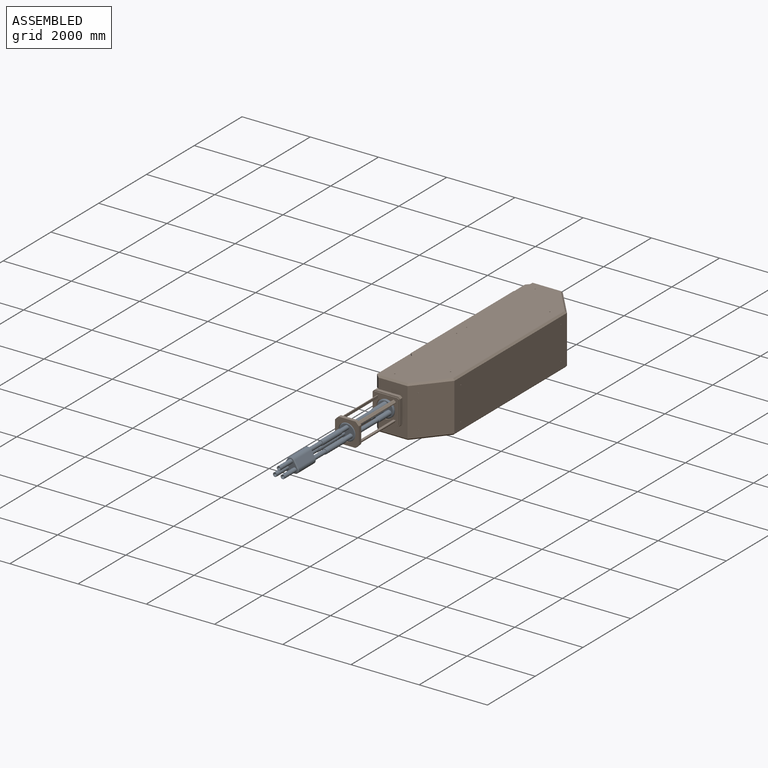
[diagram: assembled view]
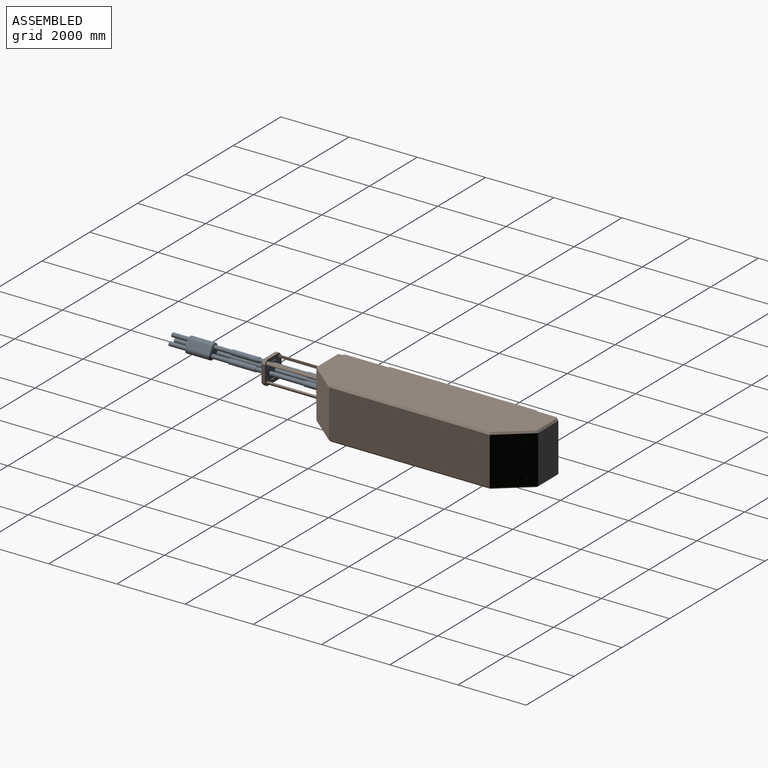
[diagram: assembled view, second angle]
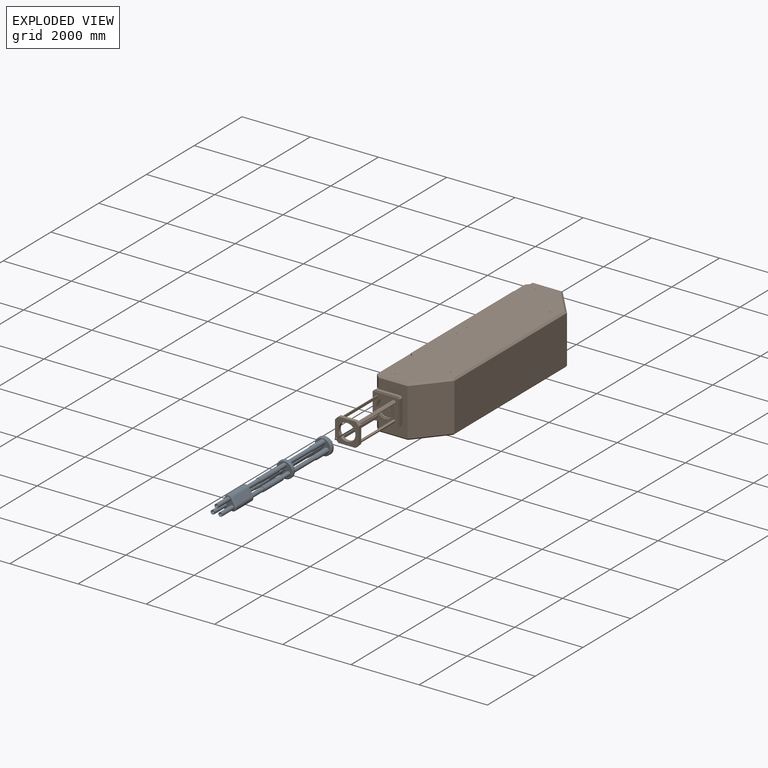
[diagram: exploded view]
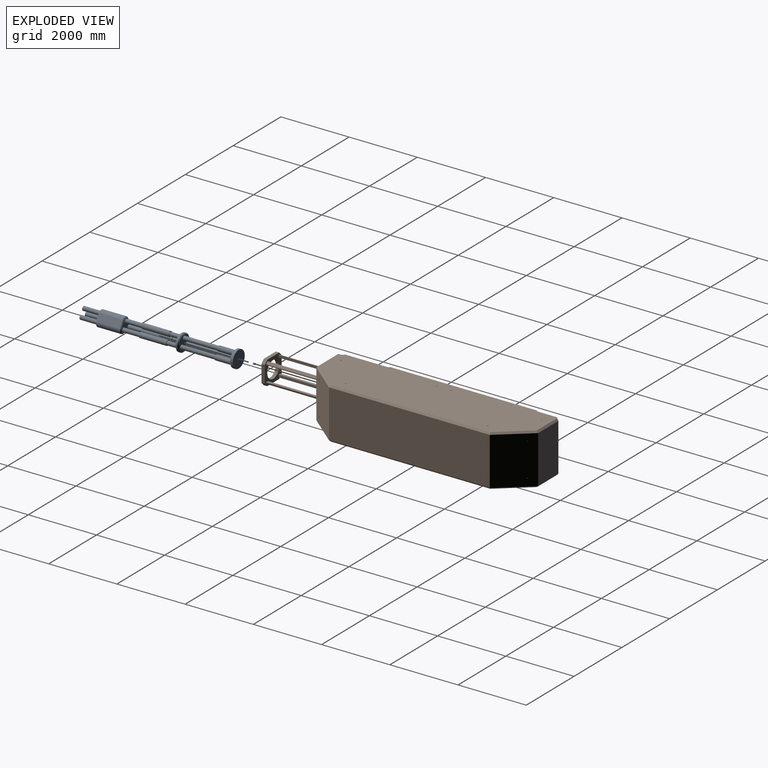
[diagram: exploded view, second angle]
ASSEMBLY  parts=4 mates=3
PART A: 70 faces, bbox 500x4550x500 mm
  f0: cylinder r=25mm len=50mm, axis (0,1,0), area 3927mm2, adj f2,f3
  f1: cylinder r=250mm len=500mm, axis (0,1,0), area 117809.7mm2, adj f2,f5
  f2: plane 500x500mm, normal (0,1,0), area 194386mm2, adj f0,f1
  f3: plane 50x50mm, normal (0,1,0), area 1963.5mm2, adj f0
  f4: plane 450x450mm, normal (0,-1,0), area 106028.8mm2, adj f5,f6,f35,f54
  f5: cone r=225mm half-angle=45deg, axis (0,1,0), area 52759.2mm2, adj f1,f4
  f6: cylinder r=75mm len=480mm, axis (0,1,0), area 226194.7mm2, adj f4,f8
  f7: cylinder r=60mm len=1005mm, axis (0,1,0), area 378876.1mm2, adj f8,f11
  f8: cone r=55mm half-angle=45deg, axis (0,1,0), area 8996.8mm2, adj f6,f7
  f9: cylinder r=250mm len=500mm, axis (0,1,0), area 78539.8mm2, adj f17,f18
  f10: plane 450x450mm, normal (0,-1,0), area 125113.9mm2, adj f12,f18,f38,f57
  f11: plane 450x450mm, normal (0,1,0), area 125113.9mm2, adj f7,f17,f36,f55
  f12: cylinder r=60mm len=300mm, axis (0,1,0), area 113097.3mm2, adj f10,f15
  f13: cylinder r=75mm len=800mm, axis (0,1,0), area 376991.1mm2, adj f14,f15
  f14: plane 150x150mm, normal (0,-1,0), area 6361.7mm2, adj f13,f16
  f15: plane 150x150mm, normal (0,1,0), area 6361.7mm2, adj f12,f13
  f16: cylinder r=60mm len=500mm, axis (0,1,0), area 188495.6mm2, adj f14,f22
  f17: cone r=250mm half-angle=45deg, axis (0,-1,0), area 52759.2mm2, adj f9,f11
  f18: cone r=225mm half-angle=45deg, axis (0,1,0), area 52759.2mm2, adj f9,f10
  f19: plane 700x180mm, normal (-0.87,0,0.5), area 145492.3mm2, adj f23,f29,f34,f62
  f20: plane 700x180mm, normal (0.87,0,0.5), area 145492.3mm2, adj f23,f31,f32,f44
  f21: plane 397.85x370mm, normal (0,-1,0), area 72366mm2, adj f24,f32,f33,f34,f45,f52,f53,f63
  f22: plane 397.85x370mm, normal (0,1,0), area 72366mm2, adj f16,f29,f30,f31,f42,f50,f51,f61
  f23: cylinder r=120mm len=700mm, axis (0,1,0), area 175929.2mm2, adj f19,f20,f30,f33
  f24: cylinder r=60mm len=500mm, axis (0,1,0), area 188495.6mm2, adj f21,f25
  f25: plane 120x120mm, normal (0,-1,0), area 3455.8mm2, adj f24,f28
  f26: cylinder r=25mm len=975mm, axis (0,-1,0), area 153152.6mm2, adj f27,f28
  f27: plane 50x50mm, normal (0,-1,0), area 1963.5mm2, adj f26
  f28: cone r=25mm half-angle=45deg, axis (0,-1,0), area 8330.4mm2, adj f25,f26
  f29: plane 192.5x125.57mm, normal (-0.61,0.71,0.35), area 7348.5mm2, adj f19,f22,f30,f68
  f30: cone r=95mm half-angle=45deg, axis (0,-1,0), area 7960.2mm2, adj f22,f23,f29,f31
  f31: plane 192.5x125.57mm, normal (0.61,0.71,0.35), area 7348.5mm2, adj f20,f22,f30,f50
  f32: plane 192.5x125.57mm, normal (0.61,-0.71,0.35), area 7348.5mm2, adj f20,f21,f33,f53
  f33: cone r=95mm half-angle=45deg, axis (0,1,0), area 7960.2mm2, adj f21,f23,f32,f34
  f34: plane 192.5x125.57mm, normal (-0.61,-0.71,0.35), area 7348.5mm2, adj f19,f21,f33,f69
  f35: cylinder r=75mm len=480mm, axis (0,1,0), area 226194.7mm2, adj f4,f37
  f36: cylinder r=60mm len=1005mm, axis (0,1,0), area 378876.1mm2, adj f11,f37
  f37: cone r=55mm half-angle=45deg, axis (0,1,0), area 8996.8mm2, adj f35,f36
  f38: cylinder r=60mm len=300mm, axis (0,1,0), area 113097.3mm2, adj f10,f41
  f39: cylinder r=75mm len=800mm, axis (0,1,0), area 376991.1mm2, adj f40,f41
  f40: plane 150x150mm, normal (0,-1,0), area 6361.7mm2, adj f39,f42
  f41: plane 150x150mm, normal (0,1,0), area 6361.7mm2, adj f38,f39
  f42: cylinder r=60mm len=500mm, axis (0,1,0), area 188495.6mm2, adj f22,f40
  f43: plane 700x207.85mm, normal (0,0,-1), area 145492.3mm2, adj f44,f51,f52,f62
  f44: cylinder r=120mm len=700mm, axis (0,1,0), area 175929.2mm2, adj f20,f43,f50,f53
  f45: cylinder r=60mm len=500mm, axis (0,1,0), area 188495.6mm2, adj f21,f46
  f46: plane 120x120mm, normal (0,-1,0), area 3455.8mm2, adj f45,f49
  f47: cylinder r=25mm len=975mm, axis (0,-1,0), area 153152.6mm2, adj f48,f49
  f48: plane 50x50mm, normal (0,-1,0), area 1963.5mm2, adj f47
  f49: cone r=25mm half-angle=45deg, axis (0,-1,0), area 8330.4mm2, adj f46,f47
  f50: cone r=95mm half-angle=45deg, axis (0,-1,0), area 7960.2mm2, adj f22,f31,f44,f51
  f51: plane 207.85x25mm, normal (0,0.71,-0.71), area 7348.5mm2, adj f22,f43,f50,f68
  f52: plane 207.85x25mm, normal (0,-0.71,-0.71), area 7348.5mm2, adj f21,f43,f53,f69
  f53: cone r=95mm half-angle=45deg, axis (0,1,0), area 7960.2mm2, adj f21,f32,f44,f52
  f54: cylinder r=75mm len=480mm, axis (0,1,0), area 226194.7mm2, adj f4,f56
  f55: cylinder r=60mm len=1005mm, axis (0,1,0), area 378876.1mm2, adj f11,f56
  f56: cone r=55mm half-angle=45deg, axis (0,1,0), area 8996.8mm2, adj f54,f55
  f57: cylinder r=60mm len=300mm, axis (0,1,0), area 113097.3mm2, adj f10,f60
  f58: cylinder r=75mm len=800mm, axis (0,1,0), area 376991.1mm2, adj f59,f60
  f59: plane 150x150mm, normal (0,-1,0), area 6361.7mm2, adj f58,f61
  f60: plane 150x150mm, normal (0,1,0), area 6361.7mm2, adj f57,f58
  f61: cylinder r=60mm len=500mm, axis (0,1,0), area 188495.6mm2, adj f22,f59
  f62: cylinder r=120mm len=700mm, axis (0,1,0), area 175929.2mm2, adj f19,f43,f68,f69
  f63: cylinder r=60mm len=500mm, axis (0,1,0), area 188495.6mm2, adj f21,f64
  f64: plane 120x120mm, normal (0,-1,0), area 3455.8mm2, adj f63,f67
  f65: cylinder r=25mm len=975mm, axis (0,-1,0), area 153152.6mm2, adj f66,f67
  f66: plane 50x50mm, normal (0,-1,0), area 1963.5mm2, adj f65
  f67: cone r=25mm half-angle=45deg, axis (0,-1,0), area 8330.4mm2, adj f64,f65
  f68: cone r=95mm half-angle=45deg, axis (0,-1,0), area 7960.2mm2, adj f22,f29,f51,f62
  f69: cone r=95mm half-angle=45deg, axis (0,1,0), area 7960.2mm2, adj f21,f34,f52,f62
PART B: 245 faces, bbox 1795x8250x1520 mm
  f0: plane 3000x1000mm, normal (-1,0,0), area 2976800mm2, adj f96,f97,f98,f99,f100,f101,f102,f103
  f1: plane 6400x1650mm, normal (0,0,-1), area 9734092.2mm2, adj f3,f10,f11,f21,f22,f23,f85,f89
  f2: plane 6200x1400mm, normal (-1,0,0), area 5295000mm2, adj f5,f6,f8,f9,f35,f36,f37,f84
  f3: plane 1400x50mm, normal (-1,0,0), area 68750mm2, adj f1,f10,f84,f91
  f4: plane 600x50mm, normal (-1,0,0), area 28750mm2, adj f5,f7,f13,f86
  f5: plane 6500x150mm, normal (0,0,1), area 512500mm2, adj f2,f4,f8,f9,f83,f86,f87,f88
  f6: plane 350x150mm, normal (-0.71,-0.71,0), area 68942.9mm2, adj f2,f16,f29,f32,f35,f84
  f7: plane 6400x1650mm, normal (0,0,1), area 9734092.2mm2, adj f4,f12,f13,f24,f25,f26,f83,f86
  f8: plane 1400x150mm, normal (-0.71,0.71,0), area 295570.6mm2, adj f2,f5,f17,f84,f93,f94,f95
  f9: plane 350x150mm, normal (-0.71,-0.71,0), area 68942.9mm2, adj f2,f5,f16,f28,f33,f36
  f10: plane 850x50mm, normal (0,-0.71,-0.71), area 59279.8mm2, adj f1,f3,f16,f21
  f11: plane 850x50mm, normal (0,0.71,-0.71), area 59279.8mm2, adj f1,f17,f23,f85
  f12: plane 850x50mm, normal (0,-0.71,0.71), area 59279.8mm2, adj f7,f16,f24,f83
  f13: plane 850x50mm, normal (0,0.71,0.71), area 59279.8mm2, adj f4,f7,f17,f26
  f14: plane 750x750mm, normal (0,-1,0), area 304917.1mm2, adj f38,f39,f40,f41,f42,f43,f44,f45
  f15: plane 800x800mm, normal (0,-1,0), area 75000mm2, adj f27,f28,f29,f30,f31,f32,f33,f34
  f16: plane 1400x850mm, normal (0,-1,0), area 632500mm2, adj f6,f9,f10,f12,f20,f27,f28,f29
  f17: plane 1400x850mm, normal (0,1,0), area 1190000mm2, adj f8,f11,f13,f19,f92
  f18: plane 4712.37x1400mm, normal (1,0,0), area 6595717.5mm2, adj f19,f20,f22,f25,f200,f201,f202,f203
  f19: plane 1400x893.82mm, normal (0.77,0.64,0), area 1632710mm2, adj f17,f18,f23,f26,f230,f231,f232,f233
  f20: plane 1400x893.82mm, normal (0.77,-0.64,0), area 1632710mm2, adj f16,f18,f21,f24,f220,f221,f222,f223
  f21: plane 912.01x773.32mm, normal (0.54,-0.45,-0.71), area 81037mm2, adj f1,f10,f20,f22
  f22: plane 4712.37x50mm, normal (0.71,0,-0.71), area 331928mm2, adj f1,f18,f21,f23
  f23: plane 912.01x773.32mm, normal (0.54,0.45,-0.71), area 81037mm2, adj f1,f11,f19,f22
  f24: plane 912.01x773.32mm, normal (0.54,-0.45,0.71), area 81037mm2, adj f7,f12,f20,f25
  f25: plane 4712.37x50mm, normal (0.71,0,0.71), area 331928mm2, adj f7,f18,f24,f26
  f26: plane 912.01x773.32mm, normal (0.54,0.45,0.71), area 81037mm2, adj f7,f13,f19,f25
  f27: plane 700x100mm, normal (1,0,0), area 70000mm2, adj f15,f16,f31,f34
  f28: plane 700x150mm, normal (0,0,1), area 71250mm2, adj f9,f15,f16,f33,f34
  f29: plane 700x150mm, normal (0,0,-1), area 71250mm2, adj f6,f15,f16,f31,f32
  f30: plane 800x700mm, normal (-1,0,0), area 560000mm2, adj f15,f32,f33,f35,f36,f37
  f31: plane 100x50mm, normal (0.71,0,-0.71), area 7071.1mm2, adj f15,f16,f27,f29
  f32: plane 200x50mm, normal (-0.71,0,-0.71), area 12374.4mm2, adj f6,f15,f29,f30
  f33: plane 200x50mm, normal (-0.71,0,0.71), area 12374.4mm2, adj f9,f15,f28,f30
  f34: plane 100x50mm, normal (0.71,0,0.71), area 7071.1mm2, adj f15,f16,f27,f28
  f35: plane 600x50mm, normal (0,0,1), area 28750mm2, adj f2,f6,f30,f37
  f36: plane 600x50mm, normal (0,0,-1), area 28750mm2, adj f2,f9,f30,f37
  f37: plane 700x50mm, normal (0,-1,0), area 35000mm2, adj f2,f30,f35,f36
  f38: plane 35.36x35.36mm, normal (0.71,0,0.71), area 1250mm2, adj f14,f15,f39,f45
  f39: plane 679.29x25mm, normal (1,0,0), area 16982.2mm2, adj f14,f15,f38,f40
  f40: plane 35.36x35.36mm, normal (0.71,0,-0.71), area 1250mm2, adj f14,f15,f39,f41
  f41: plane 679.29x25mm, normal (0,0,-1), area 16982.2mm2, adj f14,f15,f40,f42
  f42: plane 35.36x35.36mm, normal (-0.71,0,-0.71), area 1250mm2, adj f14,f15,f41,f43
  f43: plane 679.29x25mm, normal (-1,0,0), area 16982.2mm2, adj f14,f15,f42,f44
  f44: plane 35.36x35.36mm, normal (-0.71,0,0.71), area 1250mm2, adj f14,f15,f43,f45
  f45: plane 679.29x25mm, normal (0,0,1), area 16982.2mm2, adj f14,f15,f38,f44
  f46: plane 550x550mm, normal (0,-1,0), area 41233.4mm2, adj f47,f48
  f47: cylinder r=275mm len=550mm, axis (0,-1,0), area 43196.9mm2, adj f14,f46
  f48: cylinder r=250mm len=500mm, axis (0,-1,0), area 78539.8mm2, adj f46,f49
  f49: plane 500x500mm, normal (0,-1,0), area 194386mm2, adj f48,f50
  f50: cylinder r=25mm len=50mm, axis (0,-1,0), area 3927mm2, adj f49,f51
  f51: plane 50x50mm, normal (0,-1,0), area 1963.5mm2, adj f50
  f52: plane 1525x25mm, normal (1,0,0), area 38125mm2, adj f14,f53,f74,f79
  f53: plane 1525x75mm, normal (0,0,-1), area 114375mm2, adj f14,f52,f55,f74
  f54: plane 1525x25mm, normal (0,0,1), area 38125mm2, adj f14,f55,f74,f79
  f55: plane 1525x75mm, normal (-1,0,0), area 114375mm2, adj f14,f53,f54,f74
  f56: plane 1525x75mm, normal (1,0,0), area 114375mm2, adj f14,f57,f58,f74
  f57: plane 1525x75mm, normal (0,0,-1), area 114375mm2, adj f14,f56,f59,f74
  f58: plane 1525x25mm, normal (0,0,1), area 38125mm2, adj f14,f56,f74,f82
  f59: plane 1525x25mm, normal (-1,0,0), area 38125mm2, adj f14,f57,f74,f82
  f60: plane 1525x25mm, normal (1,0,0), area 38125mm2, adj f14,f62,f74,f80
  f61: plane 1525x25mm, normal (0,0,-1), area 38125mm2, adj f14,f63,f74,f80
  f62: plane 1525x75mm, normal (0,0,1), area 114375mm2, adj f14,f60,f63,f74
  f63: plane 1525x75mm, normal (-1,0,0), area 114375mm2, adj f14,f61,f62,f74
  f64: plane 1525x75mm, normal (1,0,0), area 114375mm2, adj f14,f65,f66,f74
  f65: plane 1525x25mm, normal (0,0,-1), area 38125mm2, adj f14,f64,f74,f81
  f66: plane 1525x75mm, normal (0,0,1), area 114375mm2, adj f14,f64,f67,f74
  f67: plane 1525x25mm, normal (-1,0,0), area 38125mm2, adj f14,f66,f74,f81
  f68: plane 500x100mm, normal (1,0,0), area 50000mm2, adj f73,f74,f77,f78
  f69: plane 500x100mm, normal (0,0,-1), area 50000mm2, adj f73,f74,f76,f77
  f70: plane 500x100mm, normal (-1,0,0), area 50000mm2, adj f73,f74,f75,f76
  f71: plane 500x100mm, normal (0,0,1), area 50000mm2, adj f73,f74,f75,f78
  f72: cylinder r=250mm len=500mm, axis (0,1,0), area 157079.6mm2, adj f73,f74
  f73: plane 700x700mm, normal (0,-1,0), area 273650.5mm2, adj f68,f69,f70,f71,f72,f75,f76,f77
  f74: plane 700x700mm, normal (0,1,0), area 256150.5mm2, adj f52,f53,f54,f55,f56,f57,f58,f59
  f75: plane 100x100mm, normal (-0.71,0,0.71), area 14142.1mm2, adj f70,f71,f73,f74
  f76: plane 100x100mm, normal (-0.71,0,-0.71), area 14142.1mm2, adj f69,f70,f73,f74
  f77: plane 100x100mm, normal (0.71,0,-0.71), area 14142.1mm2, adj f68,f69,f73,f74
  f78: plane 100x100mm, normal (0.71,0,0.71), area 14142.1mm2, adj f68,f71,f73,f74
  f79: plane 1525x50mm, normal (0.71,0,0.71), area 107833.8mm2, adj f14,f52,f54,f74
  f80: plane 1525x50mm, normal (0.71,0,-0.71), area 107833.8mm2, adj f14,f60,f61,f74
  f81: plane 1525x50mm, normal (-0.71,0,-0.71), area 107833.8mm2, adj f14,f65,f67,f74
  f82: plane 1525x50mm, normal (-0.71,0,0.71), area 107833.8mm2, adj f14,f58,f59,f74
  f83: plane 1400x50mm, normal (-1,0,0), area 68750mm2, adj f5,f7,f12,f87
  f84: plane 6500x150mm, normal (0,0,-1), area 512500mm2, adj f2,f3,f6,f8,f85,f89,f90,f91
  f85: plane 600x50mm, normal (-1,0,0), area 28750mm2, adj f1,f11,f84,f89
  f86: plane 100x100mm, normal (-0.71,0.71,0), area 7071.1mm2, adj f4,f5,f7,f88
  f87: plane 100x100mm, normal (-0.71,-0.71,0), area 7071.1mm2, adj f5,f7,f83,f88
  f88: plane 4300x50mm, normal (-1,0,0), area 215000mm2, adj f5,f7,f86,f87
  f89: plane 100x100mm, normal (-0.71,0.71,0), area 7071.1mm2, adj f1,f84,f85,f90
  f90: plane 4300x50mm, normal (-1,0,0), area 215000mm2, adj f1,f84,f89,f91
  f91: plane 100x100mm, normal (-0.71,-0.71,0), area 7071.1mm2, adj f1,f3,f84,f90
  f92: plane 100x10mm, normal (-1,0,0), area 1000mm2, adj f17,f93,f94,f95
  f93: plane 10x10mm, normal (0,0,-1), area 50mm2, adj f8,f92,f95
  f94: plane 10x10mm, normal (0,0,1), area 50mm2, adj f8,f92,f95
  f95: plane 100x10mm, normal (0,1,0), area 1000mm2, adj f8,f92,f93,f94
  f96: plane 3000x25mm, normal (0,0,1), area 75000mm2, adj f0,f2,f97,f99
  f97: plane 1000x25mm, normal (0,-1,0), area 25000mm2, adj f0,f2,f96,f98
  f98: plane 3000x25mm, normal (0,0,-1), area 75000mm2, adj f0,f2,f97,f99
  f99: plane 1000x25mm, normal (0,1,0), area 25000mm2, adj f0,f2,f96,f98
  f100: plane 20x10mm, normal (0,0,1), area 200mm2, adj f0,f101,f103,f104
  f101: plane 20x10mm, normal (0,-1,0), area 200mm2, adj f0,f100,f102,f104
  f102: plane 20x10mm, normal (0,0,-1), area 200mm2, adj f0,f101,f103,f104
  f103: plane 20x10mm, normal (0,1,0), area 200mm2, adj f0,f100,f102,f104
  f104: plane 20x20mm, normal (-1,0,0), area 400mm2, adj f100,f101,f102,f103
  f105: plane 20x10mm, normal (0,0,1), area 200mm2, adj f0,f106,f108,f109
  f106: plane 20x10mm, normal (0,-1,0), area 200mm2, adj f0,f105,f107,f109
  f107: plane 20x10mm, normal (0,0,-1), area 200mm2, adj f0,f106,f108,f109
  f108: plane 20x10mm, normal (0,1,0), area 200mm2, adj f0,f105,f107,f109
  f109: plane 20x20mm, normal (-1,0,0), area 400mm2, adj f105,f106,f107,f108
  f110: plane 20x10mm, normal (0,0,1), area 200mm2, adj f0,f111,f113,f114
  f111: plane 20x10mm, normal (0,-1,0), area 200mm2, adj f0,f110,f112,f114
  f112: plane 20x10mm, normal (0,0,-1), area 200mm2, adj f0,f111,f113,f114
  f113: plane 20x10mm, normal (0,1,0), area 200mm2, adj f0,f110,f112,f114
  f114: plane 20x20mm, normal (-1,0,0), area 400mm2, adj f110,f111,f112,f113
  f115: plane 20x10mm, normal (0,0,1), area 200mm2, adj f0,f116,f118,f119
  f116: plane 20x10mm, normal (0,-1,0), area 200mm2, adj f0,f115,f117,f119
  f117: plane 20x10mm, normal (0,0,-1), area 200mm2, adj f0,f116,f118,f119
  f118: plane 20x10mm, normal (0,1,0), area 200mm2, adj f0,f115,f117,f119
  f119: plane 20x20mm, normal (-1,0,0), area 400mm2, adj f115,f116,f117,f118
  f120: plane 20x10mm, normal (0,0,1), area 200mm2, adj f0,f121,f123,f124
  f121: plane 20x10mm, normal (0,-1,0), area 200mm2, adj f0,f120,f122,f124
  f122: plane 20x10mm, normal (0,0,-1), area 200mm2, adj f0,f121,f123,f124
  f123: plane 20x10mm, normal (0,1,0), area 200mm2, adj f0,f120,f122,f124
  f124: plane 20x20mm, normal (-1,0,0), area 400mm2, adj f120,f121,f122,f123
  f125: plane 20x10mm, normal (0,0,1), area 200mm2, adj f0,f126,f128,f129
  f126: plane 20x10mm, normal (0,-1,0), area 200mm2, adj f0,f125,f127,f129
  f127: plane 20x10mm, normal (0,0,-1), area 200mm2, adj f0,f126,f128,f129
  f128: plane 20x10mm, normal (0,1,0), area 200mm2, adj f0,f125,f127,f129
  f129: plane 20x20mm, normal (-1,0,0), area 400mm2, adj f125,f126,f127,f128
  f130: plane 20x10mm, normal (0,0,1), area 200mm2, adj f0,f131,f133,f134
  f131: plane 20x10mm, normal (0,-1,0), area 200mm2, adj f0,f130,f132,f134
  f132: plane 20x10mm, normal (0,0,-1), area 200mm2, adj f0,f131,f133,f134
  f133: plane 20x10mm, normal (0,1,0), area 200mm2, adj f0,f130,f132,f134
  f134: plane 20x20mm, normal (-1,0,0), area 400mm2, adj f130,f131,f132,f133
  f135: plane 20x10mm, normal (0,0,1), area 200mm2, adj f0,f136,f138,f139
  f136: plane 20x10mm, normal (0,-1,0), area 200mm2, adj f0,f135,f137,f139
  f137: plane 20x10mm, normal (0,0,-1), area 200mm2, adj f0,f136,f138,f139
  f138: plane 20x10mm, normal (0,1,0), area 200mm2, adj f0,f135,f137,f139
  f139: plane 20x20mm, normal (-1,0,0), area 400mm2, adj f135,f136,f137,f138
  f140: plane 20x10mm, normal (0,1,0), area 200mm2, adj f7,f141,f143,f144
  f141: plane 20x10mm, normal (1,0,0), area 200mm2, adj f7,f140,f142,f144
  f142: plane 20x10mm, normal (0,-1,0), area 200mm2, adj f7,f141,f143,f144
  f143: plane 20x10mm, normal (-1,0,0), area 200mm2, adj f7,f140,f142,f144
  f144: plane 20x20mm, normal (0,0,1), area 400mm2, adj f140,f141,f142,f143
  f145: plane 20x10mm, normal (0,1,0), area 200mm2, adj f7,f146,f148,f149
  f146: plane 20x10mm, normal (1,0,0), area 200mm2, adj f7,f145,f147,f149
  f147: plane 20x10mm, normal (0,-1,0), area 200mm2, adj f7,f146,f148,f149
  f148: plane 20x10mm, normal (-1,0,0), area 200mm2, adj f7,f145,f147,f149
  f149: plane 20x20mm, normal (0,0,1), area 400mm2, adj f145,f146,f147,f148
  f150: plane 20x10mm, normal (1,0,0), area 200mm2, adj f7,f151,f153,f154
  f151: plane 20x10mm, normal (0,-1,0), area 200mm2, adj f7,f150,f152,f154
  f152: plane 20x10mm, normal (-1,0,0), area 200mm2, adj f7,f151,f153,f154
  f153: plane 20x10mm, normal (0,1,0), area 200mm2, adj f7,f150,f152,f154
  f154: plane 20x20mm, normal (0,0,1), area 400mm2, adj f150,f151,f152,f153
  f155: plane 20x10mm, normal (1,0,0), area 200mm2, adj f7,f156,f158,f159
  f156: plane 20x10mm, normal (0,-1,0), area 200mm2, adj f7,f155,f157,f159
  f157: plane 20x10mm, normal (-1,0,0), area 200mm2, adj f7,f156,f158,f159
  f158: plane 20x10mm, normal (0,1,0), area 200mm2, adj f7,f155,f157,f159
  f159: plane 20x20mm, normal (0,0,1), area 400mm2, adj f155,f156,f157,f158
  f160: plane 20x10mm, normal (0,1,0), area 200mm2, adj f7,f161,f163,f164
  f161: plane 20x10mm, normal (1,0,0), area 200mm2, adj f7,f160,f162,f164
  f162: plane 20x10mm, normal (0,-1,0), area 200mm2, adj f7,f161,f163,f164
  f163: plane 20x10mm, normal (-1,0,0), area 200mm2, adj f7,f160,f162,f164
  f164: plane 20x20mm, normal (0,0,1), area 400mm2, adj f160,f161,f162,f163
  f165: plane 20x10mm, normal (0,1,0), area 200mm2, adj f7,f166,f168,f169
  f166: plane 20x10mm, normal (1,0,0), area 200mm2, adj f7,f165,f167,f169
  f167: plane 20x10mm, normal (0,-1,0), area 200mm2, adj f7,f166,f168,f169
  f168: plane 20x10mm, normal (-1,0,0), area 200mm2, adj f7,f165,f167,f169
  f169: plane 20x20mm, normal (0,0,1), area 400mm2, adj f165,f166,f167,f168
  f170: plane 20x10mm, normal (0,-1,0), area 200mm2, adj f1,f171,f173,f174
  f171: plane 20x10mm, normal (1,0,0), area 200mm2, adj f1,f170,f172,f174
  f172: plane 20x10mm, normal (0,1,0), area 200mm2, adj f1,f171,f173,f174
  f173: plane 20x10mm, normal (-1,0,0), area 200mm2, adj f1,f170,f172,f174
  f174: plane 20x20mm, normal (0,0,-1), area 400mm2, adj f170,f171,f172,f173
  f175: plane 20x10mm, normal (0,-1,0), area 200mm2, adj f1,f176,f178,f179
  f176: plane 20x10mm, normal (1,0,0), area 200mm2, adj f1,f175,f177,f179
  f177: plane 20x10mm, normal (0,1,0), area 200mm2, adj f1,f176,f178,f179
  f178: plane 20x10mm, normal (-1,0,0), area 200mm2, adj f1,f175,f177,f179
  f179: plane 20x20mm, normal (0,0,-1), area 400mm2, adj f175,f176,f177,f178
  f180: plane 20x10mm, normal (0,-1,0), area 200mm2, adj f1,f181,f183,f184
  f181: plane 20x10mm, normal (1,0,0), area 200mm2, adj f1,f180,f182,f184
  f182: plane 20x10mm, normal (0,1,0), area 200mm2, adj f1,f181,f183,f184
  f183: plane 20x10mm, normal (-1,0,0), area 200mm2, adj f1,f180,f182,f184
  f184: plane 20x20mm, normal (0,0,-1), area 400mm2, adj f180,f181,f182,f183
  f185: plane 20x10mm, normal (0,-1,0), area 200mm2, adj f1,f186,f188,f189
  f186: plane 20x10mm, normal (1,0,0), area 200mm2, adj f1,f185,f187,f189
  f187: plane 20x10mm, normal (0,1,0), area 200mm2, adj f1,f186,f188,f189
  f188: plane 20x10mm, normal (-1,0,0), area 200mm2, adj f1,f185,f187,f189
  f189: plane 20x20mm, normal (0,0,-1), area 400mm2, adj f185,f186,f187,f188
  f190: plane 20x10mm, normal (0,-1,0), area 200mm2, adj f1,f191,f193,f194
  f191: plane 20x10mm, normal (1,0,0), area 200mm2, adj f1,f190,f192,f194
  f192: plane 20x10mm, normal (0,1,0), area 200mm2, adj f1,f191,f193,f194
  f193: plane 20x10mm, normal (-1,0,0), area 200mm2, adj f1,f190,f192,f194
  f194: plane 20x20mm, normal (0,0,-1), area 400mm2, adj f190,f191,f192,f193
  f195: plane 20x10mm, normal (0,-1,0), area 200mm2, adj f1,f196,f198,f199
  f196: plane 20x10mm, normal (1,0,0), area 200mm2, adj f1,f195,f197,f199
  f197: plane 20x10mm, normal (0,1,0), area 200mm2, adj f1,f196,f198,f199
  f198: plane 20x10mm, normal (-1,0,0), area 200mm2, adj f1,f195,f197,f199
  f199: plane 20x20mm, normal (0,0,-1), area 400mm2, adj f195,f196,f197,f198
  f200: plane 20x10mm, normal (0,0,1), area 200mm2, adj f18,f201,f203,f204
  f201: plane 20x10mm, normal (0,1,0), area 200mm2, adj f18,f200,f202,f204
  f202: plane 20x10mm, normal (0,0,-1), area 200mm2, adj f18,f201,f203,f204
  f203: plane 20x10mm, normal (0,-1,0), area 200mm2, adj f18,f200,f202,f204
  f204: plane 20x20mm, normal (1,0,0), area 400mm2, adj f200,f201,f202,f203
  f205: plane 20x10mm, normal (0,0,1), area 200mm2, adj f18,f206,f208,f209
  f206: plane 20x10mm, normal (0,1,0), area 200mm2, adj f18,f205,f207,f209
  f207: plane 20x10mm, normal (0,0,-1), area 200mm2, adj f18,f206,f208,f209
  f208: plane 20x10mm, normal (0,-1,0), area 200mm2, adj f18,f205,f207,f209
  f209: plane 20x20mm, normal (1,0,0), area 400mm2, adj f205,f206,f207,f208
  f210: plane 20x10mm, normal (0,0,1), area 200mm2, adj f18,f211,f213,f214
  f211: plane 20x10mm, normal (0,1,0), area 200mm2, adj f18,f210,f212,f214
  f212: plane 20x10mm, normal (0,0,-1), area 200mm2, adj f18,f211,f213,f214
  f213: plane 20x10mm, normal (0,-1,0), area 200mm2, adj f18,f210,f212,f214
  f214: plane 20x20mm, normal (1,0,0), area 400mm2, adj f210,f211,f212,f213
  f215: plane 20x10mm, normal (0,0,1), area 200mm2, adj f18,f216,f218,f219
  f216: plane 20x10mm, normal (0,1,0), area 200mm2, adj f18,f215,f217,f219
  f217: plane 20x10mm, normal (0,0,-1), area 200mm2, adj f18,f216,f218,f219
  f218: plane 20x10mm, normal (0,-1,0), area 200mm2, adj f18,f215,f217,f219
  f219: plane 20x20mm, normal (1,0,0), area 400mm2, adj f215,f216,f217,f218
  f220: plane 21.75x20.52mm, normal (0,0,1), area 200mm2, adj f20,f221,f223,f224
  f221: plane 20x7.66mm, normal (0.64,0.77,0), area 200mm2, adj f20,f220,f222,f224
  f222: plane 21.75x20.52mm, normal (0,0,-1), area 200mm2, adj f20,f221,f223,f224
  f223: plane 20x7.66mm, normal (-0.64,-0.77,0), area 200mm2, adj f20,f220,f222,f224
  f224: plane 20x15.32mm, normal (0.77,-0.64,0), area 400mm2, adj f220,f221,f222,f223
  f225: plane 21.75x20.52mm, normal (0,0,1), area 200mm2, adj f20,f226,f228,f229
  f226: plane 20x7.66mm, normal (0.64,0.77,0), area 200mm2, adj f20,f225,f227,f229
  f227: plane 21.75x20.52mm, normal (0,0,-1), area 200mm2, adj f20,f226,f228,f229
  f228: plane 20x7.66mm, normal (-0.64,-0.77,0), area 200mm2, adj f20,f225,f227,f229
  f229: plane 20x15.32mm, normal (0.77,-0.64,0), area 400mm2, adj f225,f226,f227,f228
  f230: plane 21.75x20.52mm, normal (0,0,1), area 200mm2, adj f19,f231,f233,f234
  f231: plane 20x7.66mm, normal (-0.64,0.77,0), area 200mm2, adj f19,f230,f232,f234
  f232: plane 21.75x20.52mm, normal (0,0,-1), area 200mm2, adj f19,f231,f233,f234
  f233: plane 20x7.66mm, normal (0.64,-0.77,0), area 200mm2, adj f19,f230,f232,f234
  f234: plane 20x15.32mm, normal (0.77,0.64,0), area 400mm2, adj f230,f231,f232,f233
  f235: plane 21.75x20.52mm, normal (0,0,1), area 200mm2, adj f19,f236,f238,f239
  f236: plane 20x7.66mm, normal (-0.64,0.77,0), area 200mm2, adj f19,f235,f237,f239
  f237: plane 21.75x20.52mm, normal (0,0,-1), area 200mm2, adj f19,f236,f238,f239
  f238: plane 20x7.66mm, normal (0.64,-0.77,0), area 200mm2, adj f19,f235,f237,f239
  f239: plane 20x15.32mm, normal (0.77,0.64,0), area 400mm2, adj f235,f236,f237,f238
  f240: plane 200x25mm, normal (0,0,-1), area 5000mm2, adj f0,f241,f243,f244
  f241: plane 100x25mm, normal (0,1,0), area 2500mm2, adj f0,f240,f242,f244
  f242: plane 200x25mm, normal (0,0,1), area 5000mm2, adj f0,f241,f243,f244
  f243: plane 100x25mm, normal (0,-1,0), area 2500mm2, adj f0,f240,f242,f244
  f244: plane 200x100mm, normal (-1,0,0), area 20000mm2, adj f240,f241,f242,f243
PART C: 6 faces, bbox 50x200x100 mm
  f0: plane 200x50mm, normal (0,0,1), area 10000mm2, adj f1,f3,f4,f5
  f1: plane 100x50mm, normal (0,-1,0), area 5000mm2, adj f0,f2,f4,f5
  f2: plane 200x50mm, normal (0,0,-1), area 10000mm2, adj f1,f3,f4,f5
  f3: plane 100x50mm, normal (0,1,0), area 5000mm2, adj f0,f2,f4,f5
  f4: plane 200x100mm, normal (-1,0,0), area 20000mm2, adj f0,f1,f2,f3
  f5: plane 200x100mm, normal (1,0,0), area 20000mm2, adj f0,f1,f2,f3
PART D: 3 faces, bbox 50x50x50 mm
  f0: cylinder r=25mm len=50mm, axis (0,1,0), area 7854mm2, adj f1,f2
  f1: plane 50x50mm, normal (0,-1,0), area 1963.5mm2, adj f0
  f2: plane 50x50mm, normal (0,1,0), area 1963.5mm2, adj f0
PLACE A t=(-1058.16,-3125,-752.7)mm
PLACE B t=(-1058.16,-3125,-752.7)mm
PLACE C t=(-1058.16,-3125,-752.7)mm
PLACE D t=(-1058.16,-3125,-752.7)mm
MATE fastened A.f0 <-> D.f0  axis (0,1,0) through (-508.16,-3200,-2.7)mm
MATE fastened D.f0 <-> B.f47  axis (0,1,0) through (-508.16,-3150,-2.7)mm
MATE fastened C.f5 <-> B.f244  axis (1,0,0) through (-958.16,125,-2.7)mm
